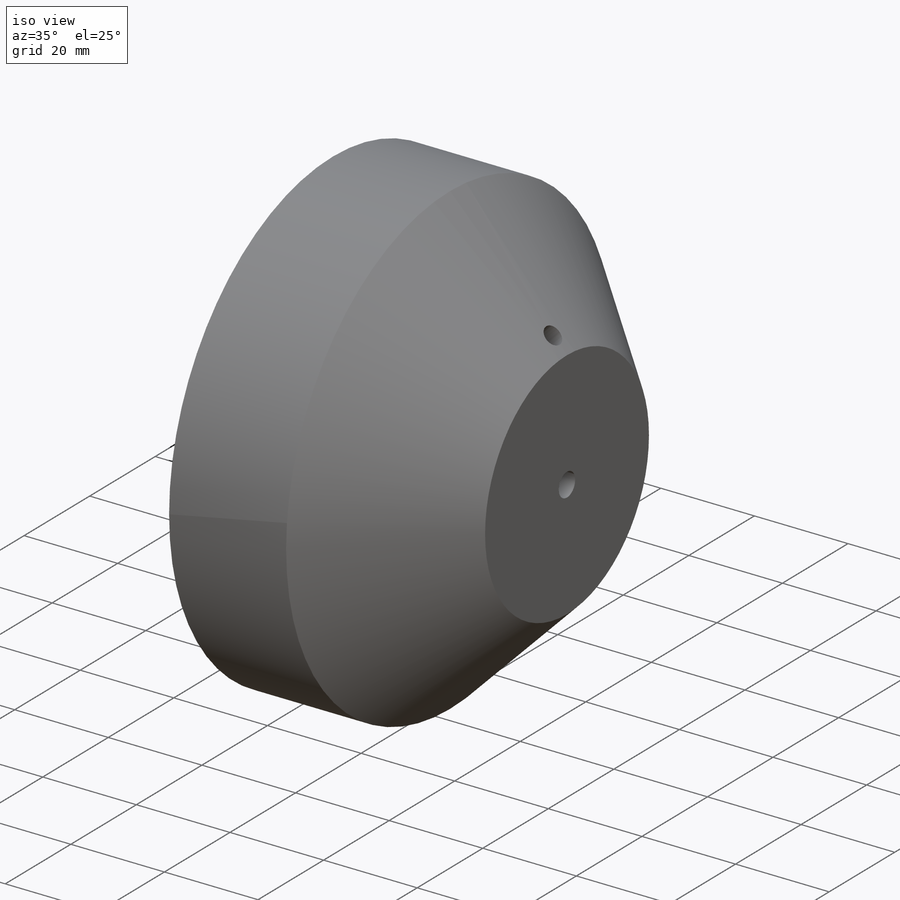
[diagram: iso view]
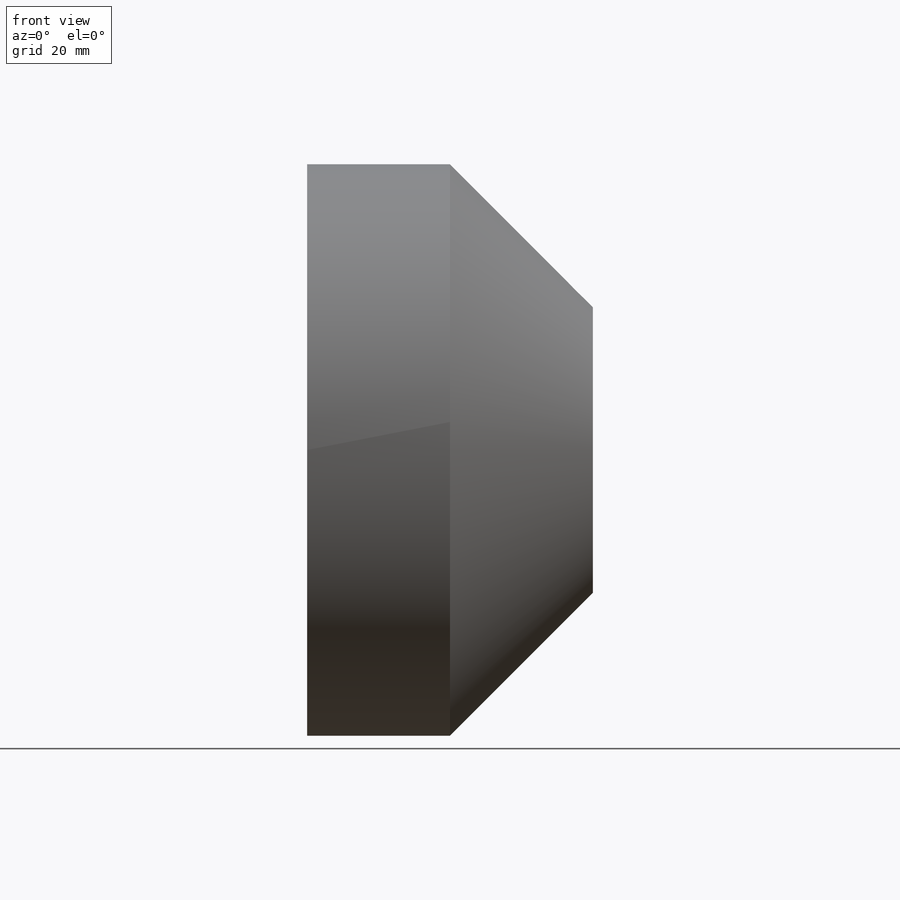
[diagram: front view]
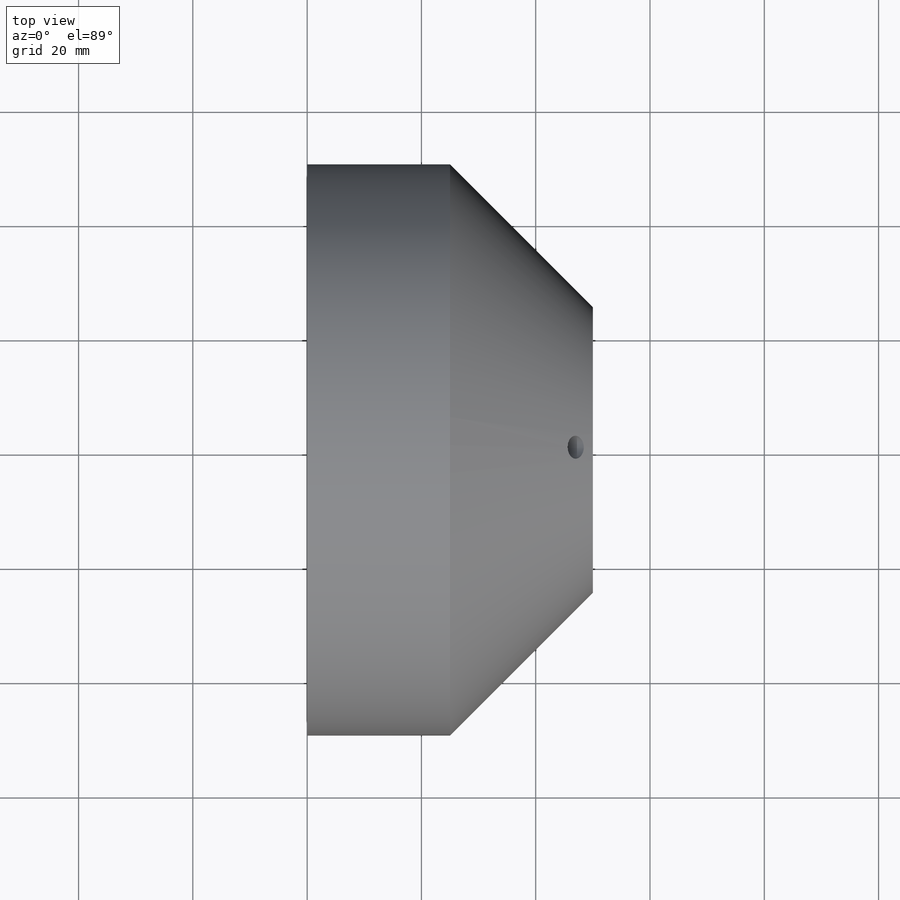
[diagram: top view]
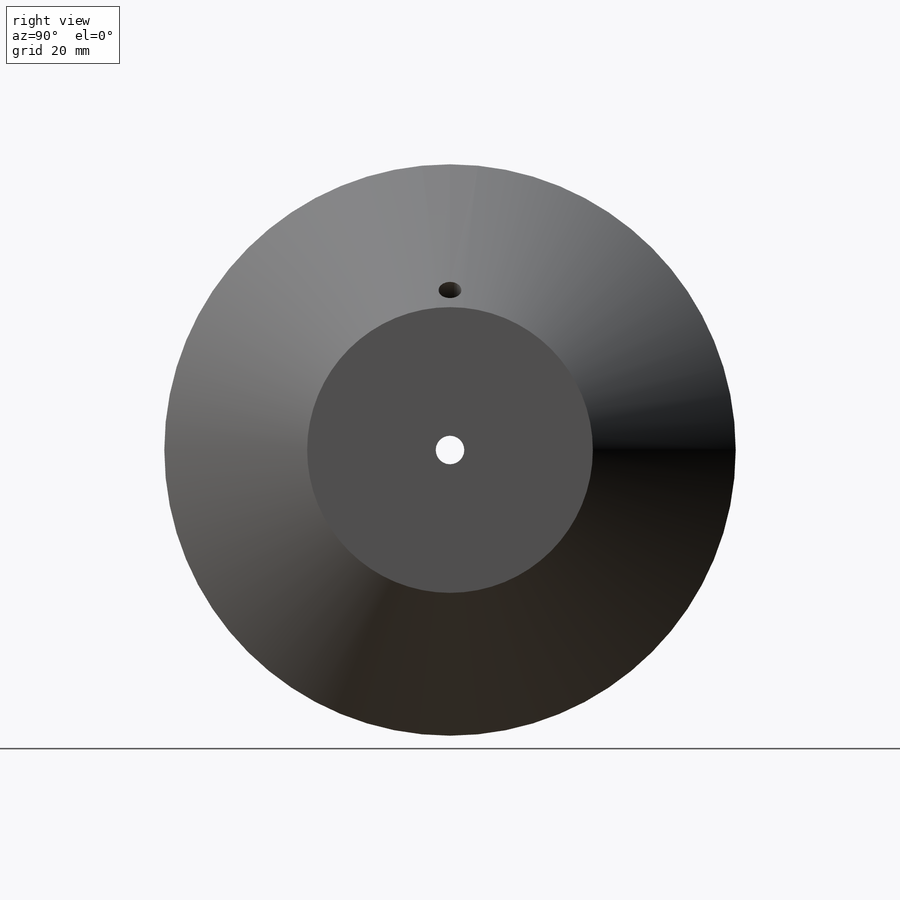
[diagram: right view]
SOLIDWORKS PART (.sldprt)
format: sldprt  version: not decoded by parser v0  size: 190,464 bytes
history: native  units: mm
features: plane x4, sketch x3, material x1, extrude x1, chamfer x1, hole x1 (+9 scaffold rows collapsed)
feature tree (20):
  scaffold x9  (default folders/planes/origin — collapsed)
  material  "Material <nicht festgelegt>"
  plane  "Vorderansicht-XY"
  plane  "Draufsicht-ZX"
  plane  "Seitenansicht-YZ"
  sketch  "Skizze1"  dims[D1=100.0mm D2=5.0mm]
  extrude  "Aufsatz-Linear austragen1"  Depth=50mm
  chamfer  "Fase1"  Distance=25mm Angle=45deg
  hole  "Ø4.0 (4) Durchmesser Bohrung1"  Diameter=4mm Depth=36.062446mm
  sketch  "3D-Skizze1"  dims[c1.D1=~37.530311mm c2.D1=~0.785319mm c3.D1=3.0mm]
  sketch  "Skizze2"  dims[hole-wizard template sketch: 59 standard entries collapsed; hole parameters kept: c18.Bohrerdurchmesser=4.0mm c18.Bohrungstiefe=~36.062446mm]
  plane  "Ebene1"
decode coverage: 6 of 6 modeling features carry decoded parameters
note: ~ marks probable driven/reference dimensions
note: suppression state not decoded; provenance and decode notes live in map.json
